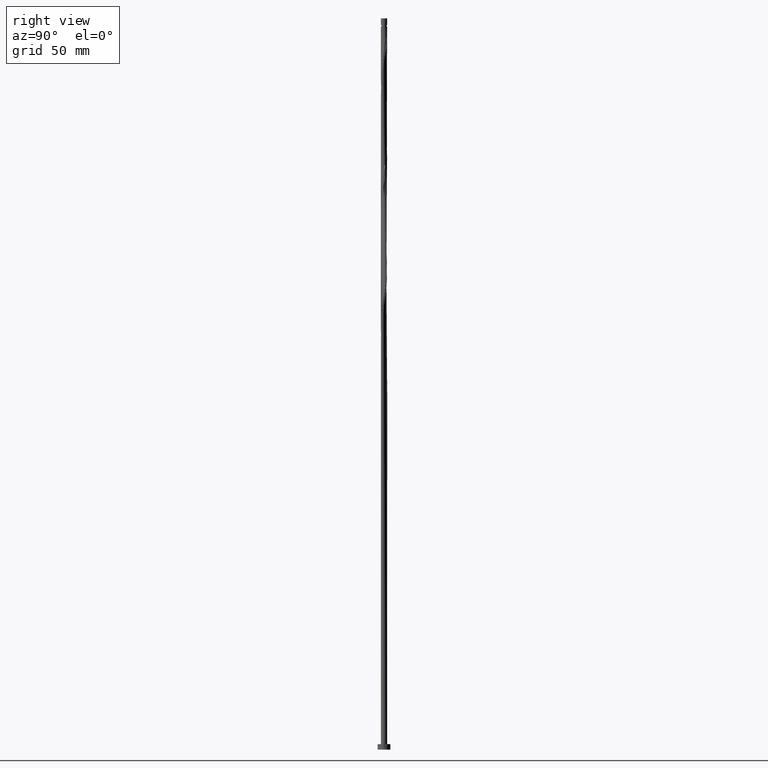
[diagram: clean part render]
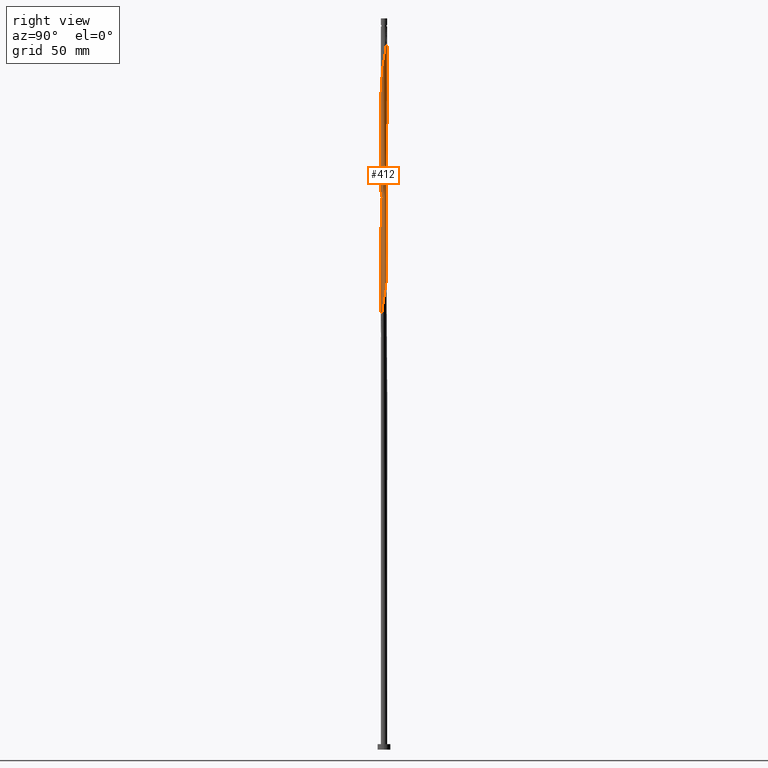
[diagram: same view with one face highlighted and labeled with its STEP entity id]
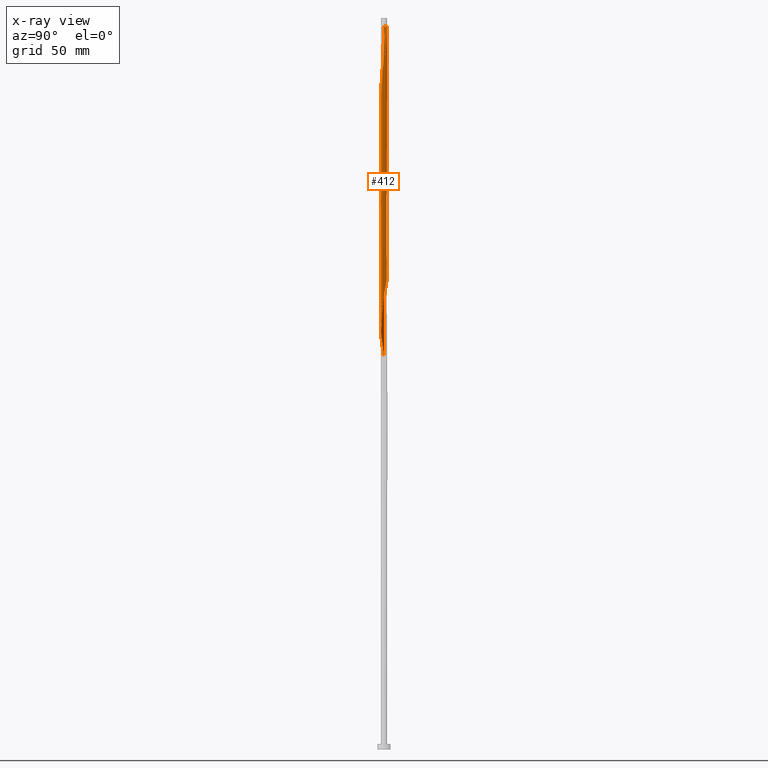
[diagram: x-ray of the same camera — body ghosted, the highlighted face saturated]
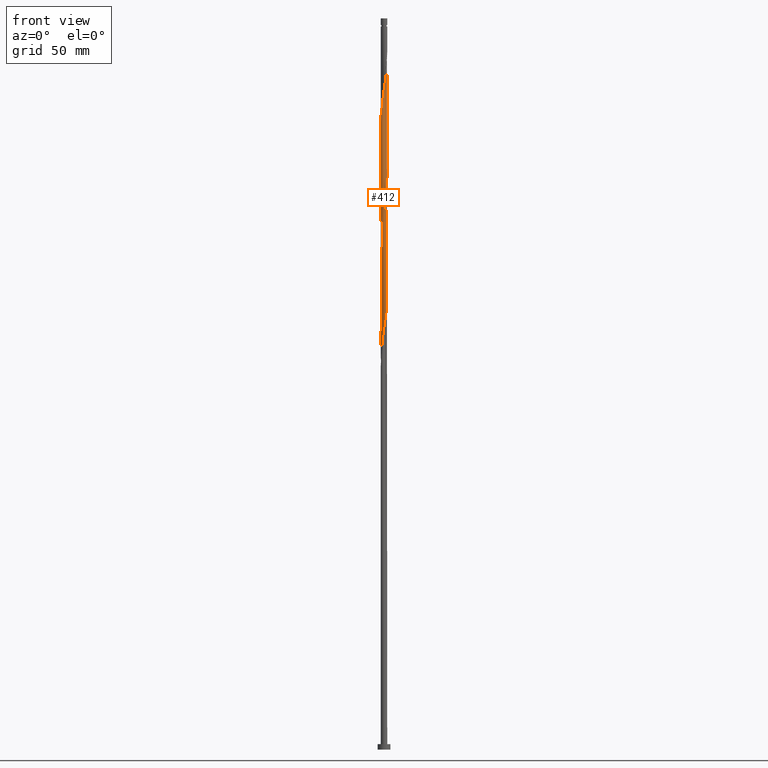
[diagram: same view with one face highlighted and labeled with its STEP entity id]
A machine part, right view. The second image highlights one B-rep face of the part: STEP entity #412.
The next image is the same camera in x-ray: the body ghosted, the highlighted face saturated — about 0% of this face is hidden behind the body in this view.
A second angle (front view) of the same face is appended — the face is thin or edge-on in the first view.
In plain terms, the highlighted cylindrical surface (bore or boss wall) has radius 1.75 mm, axis along (-0, -0, -1).
Its self-contained STEP definition (entity closure, byte-faithful):
#8 = CARTESIAN_POINT ( 'NONE',  ( -0.5284993664679560332, -1.678397912213382526, 227.8085007453947526 ) ) ;
#11 = CARTESIAN_POINT ( 'NONE',  ( -1.600927825098412693, -0.7303158432520397980, 285.5862785231725525 ) ) ;
#21 = CARTESIAN_POINT ( 'NONE',  ( -1.189285546401577243, -1.296892833351924068, 352.2529451898392949 ) ) ;
#22 = EDGE_CURVE ( 'NONE', #160, #1508, #1304, .T. ) ;
#29 = CARTESIAN_POINT ( 'NONE',  ( 0.6972041507806031602, 1.605118803121531990, 326.6973896342836383 ) ) ;
#43 = CARTESIAN_POINT ( 'NONE',  ( -1.613960246221781913, 0.7010445461559460245, 343.3640563009503239 ) ) ;
#46 = CARTESIAN_POINT ( 'NONE',  ( -1.613960246221781913, 0.7010445461559460245, 276.6973896342836952 ) ) ;
#48 = CARTESIAN_POINT ( 'NONE',  ( 1.189285546401575466, -1.296892833351922736, 305.5862785231726093 ) ) ;
#55 = CARTESIAN_POINT ( 'NONE',  ( -0.3482456029873505221, 1.715000000000446168, 395.5862785231726093 ) ) ;
#58 = CARTESIAN_POINT ( 'NONE',  ( -1.432935985591727190, 1.021286244534576282, 274.4751674120614098 ) ) ;
#63 = CARTESIAN_POINT ( 'NONE',  ( 1.600927825098412915, 0.7303158432520396870, 318.9196118565058669 ) ) ;
#66 = CARTESIAN_POINT ( 'NONE',  ( -1.738675734985620336, -0.1987628953608082116, 282.2529451898392381 ) ) ;
#69 = EDGE_LOOP ( 'NONE', ( #1548, #1761, #403, #95, #252, #1417, #1460, #272 ) ) ;
#93 = CARTESIAN_POINT ( 'NONE',  ( -1.717784912869531500, -0.3815050788614596233, 216.6973896342836667 ) ) ;
#95 = ORIENTED_EDGE ( 'NONE', *, *, #1837, .T. ) ;
#106 = CARTESIAN_POINT ( 'NONE',  ( 1.759566557101710504, 0.01602071186015532889, 247.8085007453947526 ) ) ;
#110 = EDGE_CURVE ( 'NONE', #804, #160, #423, .T. ) ;
#134 = CARTESIAN_POINT ( 'NONE',  ( 1.750000000000000000, -7.773176018745446450E-16, 314.3783884333606693 ) ) ;
#145 = CARTESIAN_POINT ( 'NONE',  ( 1.717784912869533498, -0.3815050788614620103, 374.4751674120613529 ) ) ;
#157 = CARTESIAN_POINT ( 'NONE',  ( 1.738675734985623222, -0.1987628953608090721, 375.5862785231726093 ) ) ;
#158 = CARTESIAN_POINT ( 'NONE',  ( -1.165474128162896639, -1.318332730634496519, 223.3640563009503239 ) ) ;
#160 = VERTEX_POINT ( 'NONE', #134 ) ;
#164 = CARTESIAN_POINT ( 'NONE',  ( 1.750000000000000000, 2.143131898507868297E-16, 395.5862785231726093 ) ) ;
#180 =( BOUNDED_CURVE ( )  B_SPLINE_CURVE ( 2, ( #1467, #1496, #1642, #608, #759, #613, #1184, #1165, #902, #21, #295, #1314, #1776, #1765, #479, #1635, #1887, #1060, #1025, #1033, #892, #1757, #331, #460, #1619, #305, #579, #1744, #441, #145, #157, #734, #1041, #1628, #1323, #1485, #379, #620, #1218, #1670, #200, #1368, #339, #1067, #1380, #1813, #967, #514, #55 ),
 .UNSPECIFIED., .F., .T. ) 
 B_SPLINE_CURVE_WITH_KNOTS ( ( 3, 2, 2, 2, 2, 2, 2, 2, 2, 2, 2, 2, 2, 2, 2, 2, 2, 2, 2, 2, 2, 2, 2, 2, 3 ),
 ( 0.5545286012773110729, 0.5583333333333333481, 0.5666666666666666519, 0.5749999999999999556, 0.5833333333333332593, 0.5916666666666666741, 0.6000000000000000888, 0.6083333333333335036, 0.6166666666666668073, 0.6250000000000001110, 0.6333333333333334147, 0.6416666666666667185, 0.6500000000000001332, 0.6583333333333334370, 0.6666666666666668517, 0.6750000000000001554, 0.6833333333333334592, 0.6916666666666668739, 0.7000000000000001776, 0.7083333333333334814, 0.7166666666666668961, 0.7250000000000001998, 0.7333333333333336146, 0.7416666666666669183, 0.7500000000000002220 ),
 .UNSPECIFIED. ) 
 CURVE ( )  GEOMETRIC_REPRESENTATION_ITEM ( )  RATIONAL_B_SPLINE_CURVE ( ( 0.9066196499552863219, 0.9068171577856988241, 0.9090909090909981005, 0.9041108139712461522, 0.9090909090909981005, 0.9041108139712461522, 0.9090909090909981005, 0.9041108139712461522, 0.9090909090909981005, 0.9041108139712461522, 0.9090909090909981005, 0.9041108139712461522, 0.9090909090909981005, 0.9041108139712461522, 0.9090909090909981005, 0.9041108139712461522, 0.9090909090909981005, 0.9041108139712461522, 0.9090909090909981005, 0.9041108139712461522, 0.9090909090909981005, 0.9041108139712461522, 0.9090909090909981005, 0.9041108139712461522, 0.9090909090909981005, 0.9041108139712461522, 0.9090909090909981005, 0.9041108139712461522, 0.9090909090909981005, 0.9041108139712461522, 0.9090909090909981005, 0.9041108139712461522, 0.9090909090909981005, 0.9041108139712461522, 0.9090909090909981005, 0.9041108139712461522, 0.9090909090909981005, 0.9041108139712461522, 0.9090909090909981005, 0.9041108139712461522, 0.9090909090909981005, 0.9041108139712461522, 0.9090909090909981005, 0.9041108139712461522, 0.9090909090909981005, 0.9041108139712461522, 0.9090909090909981005, 0.9041108139712460412, 0.9090909090909982115 ) ) 
 REPRESENTATION_ITEM ( '' )  );
#191 = CARTESIAN_POINT ( 'NONE',  ( -0.1998577369553097005, 1.748252847004224009, 332.2529451898391812 ) ) ;
#200 = CARTESIAN_POINT ( 'NONE',  ( 1.041471584205020617, 1.406355907760725055, 386.6973896342836952 ) ) ;
#205 = CARTESIAN_POINT ( 'NONE',  ( 1.724446699451429366, -0.3501638371253404380, 312.2529451898391812 ) ) ;
#214 = CARTESIAN_POINT ( 'NONE',  ( -1.311110765996650995, 1.159089538943249398, 273.3640563009503808 ) ) ;
#216 = CARTESIAN_POINT ( 'NONE',  ( 1.311110765996650773, -1.159089538943249842, 306.6973896342836383 ) ) ;
#232 = EDGE_CURVE ( 'NONE', #1471, #1479, #739, .T. ) ;
#239 = CARTESIAN_POINT ( 'NONE',  ( -1.600927825098412693, -0.7303158432520397980, 218.9196118565058953 ) ) ;
#248 = CARTESIAN_POINT ( 'NONE',  ( 0.1998577369553093952, -1.748252847004224009, 298.9196118565058100 ) ) ;
#252 = ORIENTED_EDGE ( 'NONE', *, *, #22, .F. ) ;
#258 = CARTESIAN_POINT ( 'NONE',  ( 1.600927825098412915, 0.7303158432520396870, 252.2529451898392097 ) ) ;
#269 = CARTESIAN_POINT ( 'NONE',  ( -0.1679918395066862802, -1.751602087786616302, 296.6973896342835815 ) ) ;
#272 = ORIENTED_EDGE ( 'NONE', *, *, #999, .F. ) ;
#277 = CARTESIAN_POINT ( 'NONE',  ( -0.01593294872431199119, 1.749927467395420155, 264.4751674120614666 ) ) ;
#285 = CARTESIAN_POINT ( 'NONE',  ( -0.8659089350932489548, -1.531839694029681231, 225.5862785231724956 ) ) ;
#295 = CARTESIAN_POINT ( 'NONE',  ( -1.041471584205020395, -1.406355907760725055, 353.3640563009503239 ) ) ;
#305 = CARTESIAN_POINT ( 'NONE',  ( 1.414102509266473851, -1.047208300848279983, 370.0307229676169527 ) ) ;
#308 = CARTESIAN_POINT ( 'NONE',  ( 1.750000000000000000, 2.143131898507868297E-16, 400.0000000000000000 ) ) ;
#331 = CARTESIAN_POINT ( 'NONE',  ( 1.015691531628073019, -1.425086212332092650, 366.6973896342836952 ) ) ;
#339 = CARTESIAN_POINT ( 'NONE',  ( 0.7263150966484994697, 1.592157774964682915, 388.9196118565060374 ) ) ;
#346 = CARTESIAN_POINT ( 'NONE',  ( 1.659356368983972319, 0.5559104610567486837, 317.8085007453947242 ) ) ;
#357 = CARTESIAN_POINT ( 'NONE',  ( 0.8659089350932490659, 1.531839694029680787, 325.5862785231725525 ) ) ;
#365 = CARTESIAN_POINT ( 'NONE',  ( 1.749999999999999556, 0.09970404053125733745, 314.9839797427452481 ) ) ;
#373 = CARTESIAN_POINT ( 'NONE',  ( 1.750000000000000222, -0.08372699875181165152, 313.8698399077966315 ) ) ;
#379 = CARTESIAN_POINT ( 'NONE',  ( 1.523448115906757439, 0.8611653953452615973, 382.2529451898392949 ) ) ;
#392 = CARTESIAN_POINT ( 'NONE',  ( 1.041471584205018175, -1.406355907760724389, 237.8085007453947242 ) ) ;
#394 = CARTESIAN_POINT ( 'NONE',  ( -1.750000000000000000, 2.242262313099648157E-17, 214.3783884333606977 ) ) ;
#403 = ORIENTED_EDGE ( 'NONE', *, *, #929, .F. ) ;
#411 = CARTESIAN_POINT ( 'NONE',  ( 1.507515167182443161, 0.8887620720501582250, 253.3640563009503524 ) ) ;
#412 = ADVANCED_FACE ( 'NONE', ( #631 ), #1220, .T. ) ;
#415 = CARTESIAN_POINT ( 'NONE',  ( -0.3482456029873505221, 1.715000000000446168, 395.5862785231726093 ) ) ;
#420 = CARTESIAN_POINT ( 'NONE',  ( -0.5589725712885339481, 1.668496567759836902, 267.8085007453947242 ) ) ;
#423 = LINE ( 'NONE', #308, #774 ) ;
#430 = CARTESIAN_POINT ( 'NONE',  ( -0.3794151541219216162, 1.708374707382030344, 266.6973896342836383 ) ) ;
#441 = CARTESIAN_POINT ( 'NONE',  ( 1.659356368983974539, -0.5559104610567517923, 373.3640563009503239 ) ) ;
#460 = CARTESIAN_POINT ( 'NONE',  ( 1.165474128162896861, -1.318332730634499184, 367.8085007453947242 ) ) ;
#464 = CARTESIAN_POINT ( 'NONE',  ( -1.717784912869531500, -0.3815050788614596233, 283.3640563009503239 ) ) ;
#465 = CARTESIAN_POINT ( 'NONE',  ( -1.750000000000000000, 2.242262313099648157E-17, 214.3783884333606977 ) ) ;
#479 = CARTESIAN_POINT ( 'NONE',  ( -0.3794151541219228929, -1.708374707382032787, 357.8085007453947242 ) ) ;
#498 = CARTESIAN_POINT ( 'NONE',  ( 1.507515167182443161, 0.8887620720501582250, 320.0307229676170095 ) ) ;
#500 = DIRECTION ( 'NONE',  ( -0.000000000000000000, -0.000000000000000000, -1.000000000000000000 ) ) ;
#504 = CARTESIAN_POINT ( 'NONE',  ( -1.507515167182442939, -0.8887620720501582250, 220.0307229676169527 ) ) ;
#514 = CARTESIAN_POINT ( 'NONE',  ( -0.1679918395066890002, 1.751602087786618966, 394.4751674120614098 ) ) ;
#537 = CARTESIAN_POINT ( 'NONE',  ( 1.669203472836606084, -0.5256041916406442027, 244.4751674120614098 ) ) ;
#547 = CARTESIAN_POINT ( 'NONE',  ( -0.3482456029873208236, -1.714999999999998970, 295.5862785231726093 ) ) ;
#564 = CARTESIAN_POINT ( 'NONE',  ( 1.742006628276570046, -0.1670715626325925962, 246.6973896342836952 ) ) ;
#570 = DIRECTION ( 'NONE',  ( -1.000000000000000000, 0.000000000000000000, 0.000000000000000000 ) ) ;
#571 = CARTESIAN_POINT ( 'NONE',  ( 1.659356368983972319, 0.5559104610567486837, 251.1418340787281522 ) ) ;
#579 = CARTESIAN_POINT ( 'NONE',  ( 1.507515167182444271, -0.8887620720501611116, 371.1418340787282091 ) ) ;
#585 = VERTEX_POINT ( 'NONE', #1147 ) ;
#598 = CARTESIAN_POINT ( 'NONE',  ( -1.414102509266472518, -1.047208300848277762, 221.1418340787280385 ) ) ;
#600 = CARTESIAN_POINT ( 'NONE',  ( -1.659356368983971652, -0.5559104610567496829, 284.4751674120614666 ) ) ;
#608 = CARTESIAN_POINT ( 'NONE',  ( -1.724446699451431808, -0.3501638371253402715, 345.5862785231725525 ) ) ;
#613 = CARTESIAN_POINT ( 'NONE',  ( -1.613960246221784356, -0.7010445461559460245, 347.8085007453946673 ) ) ;
#620 = CARTESIAN_POINT ( 'NONE',  ( 1.432935985591729633, 1.021286244534576282, 383.3640563009503239 ) ) ;
#623 = CARTESIAN_POINT ( 'NONE',  ( -1.724446699451429366, 0.3501638371253402160, 278.9196118565058100 ) ) ;
#628 = CARTESIAN_POINT ( 'NONE',  ( -1.311110765996650995, 1.159089538943249398, 340.0307229676170095 ) ) ;
#631 = FACE_OUTER_BOUND ( 'NONE', #69, .T. ) ;
#639 = CARTESIAN_POINT ( 'NONE',  ( -1.742006628276570046, 0.1670715626325919301, 346.6973896342836383 ) ) ;
#642 = CARTESIAN_POINT ( 'NONE',  ( -1.189285546401575466, 1.296892833351922736, 272.2529451898391244 ) ) ;
#658 = CARTESIAN_POINT ( 'NONE',  ( -1.523448115906754330, 0.8611653953452607091, 342.2529451898391812 ) ) ;
#663 = CARTESIAN_POINT ( 'NONE',  ( 1.669203472836606084, -0.5256041916406442027, 311.1418340787280954 ) ) ;
#666 = DIRECTION ( 'NONE',  ( -0.000000000000000000, -0.000000000000000000, -1.000000000000000000 ) ) ;
#674 = CARTESIAN_POINT ( 'NONE',  ( 1.015691531628073463, 1.425086212332088431, 257.8085007453947810 ) ) ;
#676 = CARTESIAN_POINT ( 'NONE',  ( 0.5589725712885333930, -1.668496567759837346, 301.1418340787280385 ) ) ;
#695 = CARTESIAN_POINT ( 'NONE',  ( 1.613960246221781691, -0.7010445461559464686, 243.3640563009502955 ) ) ;
#698 = CARTESIAN_POINT ( 'NONE',  ( -1.289788318714684578, -1.182770515741387252, 288.9196118565058669 ) ) ;
#705 = CARTESIAN_POINT ( 'NONE',  ( -0.1998577369553097005, 1.748252847004224009, 265.5862785231724956 ) ) ;
#718 = AXIS2_PLACEMENT_3D ( 'NONE', #1798, #500, #570 ) ;
#734 = CARTESIAN_POINT ( 'NONE',  ( 1.759566557101712281, -0.01602071186015776444, 376.6973896342836383 ) ) ;
#739 = LINE ( 'NONE', #1319, #1272 ) ;
#759 = CARTESIAN_POINT ( 'NONE',  ( -1.669203472836608748, -0.5256041916406433145, 346.6973896342836952 ) ) ;
#760 = CARTESIAN_POINT ( 'NONE',  ( 0.01593294872431156445, -1.749927467395419933, 231.1418340787280670 ) ) ;
#768 = CARTESIAN_POINT ( 'NONE',  ( -1.724446699451429366, 0.3501638371253402160, 345.5862785231725525 ) ) ;
#774 = VECTOR ( 'NONE', #1009, 1000.000000000000000 ) ;
#777 = CARTESIAN_POINT ( 'NONE',  ( 1.414102509266473406, 1.047208300848276652, 321.1418340787280385 ) ) ;
#793 = CARTESIAN_POINT ( 'NONE',  ( 1.041471584205018175, -1.406355907760724389, 304.4751674120612961 ) ) ;
#804 = VERTEX_POINT ( 'NONE', #164 ) ;
#825 = CARTESIAN_POINT ( 'NONE',  ( 1.613960246221781691, -0.7010445461559464686, 310.0307229676168959 ) ) ;
#828 = CARTESIAN_POINT ( 'NONE',  ( -1.659356368983971652, -0.5559104610567496829, 217.8085007453947242 ) ) ;
#840 = DIRECTION ( 'NONE',  ( -1.000000000000000000, 0.000000000000000000, 0.000000000000000000 ) ) ;
#854 = CARTESIAN_POINT ( 'NONE',  ( 0.3482456029873209902, 1.714999999999998970, 262.2529451898392381 ) ) ;
#857 = CARTESIAN_POINT ( 'NONE',  ( -1.015691531628072797, -1.425086212332089097, 291.1418340787281522 ) ) ;
#892 = CARTESIAN_POINT ( 'NONE',  ( 0.6972041507806024940, -1.605118803121534876, 364.4751674120615803 ) ) ;
#893 = CARTESIAN_POINT ( 'NONE',  ( -0.6972041507806027161, -1.605118803121531990, 226.6973896342836099 ) ) ;
#902 = CARTESIAN_POINT ( 'NONE',  ( -1.311110765996653660, -1.159089538943250286, 351.1418340787280954 ) ) ;
#929 = EDGE_CURVE ( 'NONE', #585, #1615, #180, .T. ) ;
#930 = CARTESIAN_POINT ( 'NONE',  ( 0.3482456029873209902, 1.714999999999998970, 328.9196118565058669 ) ) ;
#931 = AXIS2_PLACEMENT_3D ( 'NONE', #1102, #666, #840 ) ;
#946 = CARTESIAN_POINT ( 'NONE',  ( 1.289788318714684801, 1.182770515741387252, 322.2529451898391244 ) ) ;
#954 = CARTESIAN_POINT ( 'NONE',  ( 1.432935985591726524, -1.021286244534577170, 307.8085007453947242 ) ) ;
#958 = CARTESIAN_POINT ( 'NONE',  ( -0.7263150966484975823, 1.592157774964680916, 335.5862785231724388 ) ) ;
#967 = CARTESIAN_POINT ( 'NONE',  ( 0.01593294872431320203, 1.749927467395422598, 393.3640563009503239 ) ) ;
#970 = CARTESIAN_POINT ( 'NONE',  ( -1.759566557101710504, -0.01602071186015634544, 281.1418340787280954 ) ) ;
#979 = CARTESIAN_POINT ( 'NONE',  ( 0.8936576220084608835, -1.515818982169524931, 236.6973896342836667 ) ) ;
#987 = CARTESIAN_POINT ( 'NONE',  ( 0.1679918395066855308, 1.751602087786616080, 263.3640563009503239 ) ) ;
#995 = CARTESIAN_POINT ( 'NONE',  ( 1.189285546401575466, -1.296892833351922736, 238.9196118565058669 ) ) ;
#999 = EDGE_CURVE ( 'NONE', #1479, #160, #1851, .T. ) ;
#1002 = CARTESIAN_POINT ( 'NONE',  ( -1.749999999999963807, 0.000000000000000000, 395.5862785231724956 ) ) ;
#1009 = DIRECTION ( 'NONE',  ( -0.000000000000000000, -0.000000000000000000, -1.000000000000000000 ) ) ;
#1016 = CARTESIAN_POINT ( 'NONE',  ( 1.165474128162896861, 1.318332730634496519, 256.6973896342836383 ) ) ;
#1025 = CARTESIAN_POINT ( 'NONE',  ( 0.3482456029873206571, -1.715000000000001856, 362.2529451898391244 ) ) ;
#1033 = CARTESIAN_POINT ( 'NONE',  ( 0.5284993664679553671, -1.678397912213385634, 363.3640563009502671 ) ) ;
#1041 = CARTESIAN_POINT ( 'NONE',  ( 1.742006628276572933, 0.1670715626325904035, 377.8085007453947242 ) ) ;
#1060 = CARTESIAN_POINT ( 'NONE',  ( 0.1679918395066850867, -1.751602087786618300, 361.1418340787280385 ) ) ;
#1067 = CARTESIAN_POINT ( 'NONE',  ( 0.5589725712885353914, 1.668496567759838900, 390.0307229676169527 ) ) ;
#1075 = CARTESIAN_POINT ( 'NONE',  ( 1.750000000000000000, -7.773176018745446450E-16, 314.3783884333606693 ) ) ;
#1084 = CARTESIAN_POINT ( 'NONE',  ( -0.8936576220084611055, 1.515818982169524709, 336.6973896342836952 ) ) ;
#1088 = CARTESIAN_POINT ( 'NONE',  ( 1.523448115906754330, -0.8611653953452609311, 308.9196118565059237 ) ) ;
#1093 = CARTESIAN_POINT ( 'NONE',  ( -1.432935985591727190, 1.021286244534576282, 341.1418340787279817 ) ) ;
#1100 = CARTESIAN_POINT ( 'NONE',  ( 1.750000000000000000, -7.773176018745446450E-16, 314.3783884333606693 ) ) ;
#1102 = CARTESIAN_POINT ( 'NONE',  ( 0.000000000000000000, 0.000000000000000000, 395.5862785231724956 ) ) ;
#1119 = CARTESIAN_POINT ( 'NONE',  ( 1.432935985591726524, -1.021286244534577170, 241.1418340787280670 ) ) ;
#1131 = CARTESIAN_POINT ( 'NONE',  ( 0.5589725712885333930, -1.668496567759837346, 234.4751674120614098 ) ) ;
#1133 = CARTESIAN_POINT ( 'NONE',  ( -0.5284993664679560332, -1.678397912213382526, 294.4751674120614666 ) ) ;
#1147 = CARTESIAN_POINT ( 'NONE',  ( -1.750000000000002442, -3.811845932269377646E-16, 343.4608352796509507 ) ) ;
#1157 = CARTESIAN_POINT ( 'NONE',  ( 0.3794151541219210055, -1.708374707382031010, 300.0307229676168959 ) ) ;
#1165 = CARTESIAN_POINT ( 'NONE',  ( -1.432935985591729633, -1.021286244534576948, 350.0307229676168959 ) ) ;
#1184 = CARTESIAN_POINT ( 'NONE',  ( -1.523448115906757439, -0.8611653953452617083, 348.9196118565059237 ) ) ;
#1193 = CARTESIAN_POINT ( 'NONE',  ( -1.414102509266472518, -1.047208300848277762, 287.8085007453947242 ) ) ;
#1207 = CARTESIAN_POINT ( 'NONE',  ( 1.738675734985620336, 0.1987628953608079341, 315.5862785231725525 ) ) ;
#1218 = CARTESIAN_POINT ( 'NONE',  ( 1.311110765996654326, 1.159089538943249398, 384.4751674120615235 ) ) ;
#1220 = CYLINDRICAL_SURFACE ( 'NONE', #718, 1.750000000000000000 ) ;
#1227 = CARTESIAN_POINT ( 'NONE',  ( -0.5589725712885339481, 1.668496567759836902, 334.4751674120614666 ) ) ;
#1232 = CARTESIAN_POINT ( 'NONE',  ( -1.041471584205018397, 1.406355907760723500, 271.1418340787280385 ) ) ;
#1246 = CARTESIAN_POINT ( 'NONE',  ( 0.7263150966484974713, -1.592157774964680916, 302.2529451898392381 ) ) ;
#1252 = CARTESIAN_POINT ( 'NONE',  ( -1.041471584205018397, 1.406355907760723500, 337.8085007453947810 ) ) ;
#1267 = CARTESIAN_POINT ( 'NONE',  ( 1.289788318714684801, 1.182770515741387252, 255.5862785231724956 ) ) ;
#1272 = VECTOR ( 'NONE', #1330, 1000.000000000000000 ) ;
#1278 = CARTESIAN_POINT ( 'NONE',  ( -0.7263150966484975823, 1.592157774964680916, 268.9196118565058669 ) ) ;
#1286 = CARTESIAN_POINT ( 'NONE',  ( 0.5284993664679570324, 1.678397912213382526, 261.1418340787280385 ) ) ;
#1290 = CARTESIAN_POINT ( 'NONE',  ( -1.750000000000000000, 1.151027987391152437E-15, 347.7117217666940974 ) ) ;
#1299 = CARTESIAN_POINT ( 'NONE',  ( -0.8659089350932489548, -1.531839694029681231, 292.2529451898391812 ) ) ;
#1304 =( BOUNDED_CURVE ( )  B_SPLINE_CURVE ( 2, ( #1100, #373, #1528, #205, #663, #825, #1088, #954, #216, #48, #793, #1386, #1246, #676, #1157, #248, #1603, #269, #547, #1133, #1431, #1299, #857, #1441, #698, #1193, #1644, #11, #600, #464, #66, #970, #1405, #623, #1516, #46, #1666, #58, #214, #642, #1232, #1421, #1278, #420, #430, #705, #277, #987, #854, #1286, #1720, #1306, #674, #1016, #1267, #1844, #411, #258, #571, #1735, #1601, #106, #564, #1833, #537, #695, #1438, #1119, #1703, #995, #392, #979, #1584, #1131, #1854, #1575, #760, #1766, #1355, #8, #893, #285, #1751, #158, #1335, #598, #504, #239, #828, #93, #1659, #1373, #465 ),
 .UNSPECIFIED., .F., .T. ) 
 B_SPLINE_CURVE_WITH_KNOTS ( ( 3, 2, 2, 2, 2, 2, 2, 2, 2, 2, 2, 2, 2, 2, 2, 2, 2, 2, 2, 2, 2, 2, 2, 2, 2, 2, 2, 2, 2, 2, 2, 2, 2, 2, 2, 2, 2, 2, 2, 2, 2, 2, 2, 2, 2, 2, 3 ),
 ( 0.5545286012773112949, 0.5583333333333333481, 0.5666666666666666519, 0.5749999999999999556, 0.5833333333333333703, 0.5916666666666666741, 0.5999999999999999778, 0.6083333333333332815, 0.6166666666666666963, 0.6250000000000000000, 0.6333333333333333037, 0.6416666666666667185, 0.6500000000000000222, 0.6583333333333333259, 0.6666666666666666297, 0.6750000000000000444, 0.6833333333333333481, 0.6916666666666666519, 0.6999999999999999556, 0.7083333333333333703, 0.7166666666666666741, 0.7249999999999999778, 0.7333333333333332815, 0.7416666666666666963, 0.7500000000000000000, 0.7583333333333333037, 0.7666666666666667185, 0.7750000000000000222, 0.7833333333333333259, 0.7916666666666666297, 0.8000000000000000444, 0.8083333333333333481, 0.8166666666666666519, 0.8249999999999999556, 0.8333333333333333703, 0.8416666666666666741, 0.8499999999999999778, 0.8583333333333332815, 0.8666666666666666963, 0.8750000000000000000, 0.8833333333333333037, 0.8916666666666667185, 0.9000000000000000222, 0.9083333333333333259, 0.9166666666666666297, 0.9250000000000000444, 0.9295286012773115170 ),
 .UNSPECIFIED. ) 
 CURVE ( )  GEOMETRIC_REPRESENTATION_ITEM ( )  RATIONAL_B_SPLINE_CURVE ( ( 0.9066196499552807708, 0.9068171577856933840, 0.9090909090909925494, 0.9041108139712406011, 0.9090909090909925494, 0.9041108139712406011, 0.9090909090909925494, 0.9041108139712406011, 0.9090909090909925494, 0.9041108139712406011, 0.9090909090909925494, 0.9041108139712406011, 0.9090909090909925494, 0.9041108139712406011, 0.9090909090909925494, 0.9041108139712406011, 0.9090909090909925494, 0.9041108139712406011, 0.9090909090909925494, 0.9041108139712406011, 0.9090909090909925494, 0.9041108139712406011, 0.9090909090909925494, 0.9041108139712406011, 0.9090909090909925494, 0.9041108139712406011, 0.9090909090909925494, 0.9041108139712406011, 0.9090909090909925494, 0.9041108139712406011, 0.9090909090909925494, 0.9041108139712406011, 0.9090909090909925494, 0.9041108139712406011, 0.9090909090909925494, 0.9041108139712406011, 0.9090909090909925494, 0.9041108139712406011, 0.9090909090909925494, 0.9041108139712406011, 0.9090909090909925494, 0.9041108139712406011, 0.9090909090909925494, 0.9041108139712406011, 0.9090909090909925494, 0.9041108139712406011, 0.9090909090909925494, 0.9041108139712406011, 0.9090909090909925494, 0.9041108139712406011, 0.9090909090909925494, 0.9041108139712406011, 0.9090909090909925494, 0.9041108139712406011, 0.9090909090909925494, 0.9041108139712406011, 0.9090909090909925494, 0.9041108139712406011, 0.9090909090909925494, 0.9041108139712406011, 0.9090909090909925494, 0.9041108139712406011, 0.9090909090909925494, 0.9041108139712406011, 0.9090909090909925494, 0.9041108139712406011, 0.9090909090909925494, 0.9041108139712406011, 0.9090909090909925494, 0.9041108139712406011, 0.9090909090909925494, 0.9041108139712406011, 0.9090909090909925494, 0.9041108139712406011, 0.9090909090909925494, 0.9041108139712406011, 0.9090909090909925494, 0.9041108139712406011, 0.9090909090909925494, 0.9041108139712406011, 0.9090909090909925494, 0.9041108139712406011, 0.9090909090909925494, 0.9041108139712406011, 0.9090909090909925494, 0.9041108139712406011, 0.9090909090909925494, 0.9041108139712406011, 0.9090909090909925494, 0.9041108139712406011, 0.9090909090909925494, 0.9063845652765396554, 0.9066196499552807708 ) ) 
 REPRESENTATION_ITEM ( '' )  );
#1306 = CARTESIAN_POINT ( 'NONE',  ( 0.8659089350932490659, 1.531839694029680787, 258.9196118565058669 ) ) ;
#1309 = DIRECTION ( 'NONE',  ( -0.000000000000000000, -0.000000000000000000, -1.000000000000000000 ) ) ;
#1314 = CARTESIAN_POINT ( 'NONE',  ( -0.8936576220084627709, -1.515818982169526263, 354.4751674120614666 ) ) ;
#1319 = CARTESIAN_POINT ( 'NONE',  ( -1.750000000000000000, 0.000000000000000000, 400.0000000000000000 ) ) ;
#1323 = CARTESIAN_POINT ( 'NONE',  ( 1.669203472836608748, 0.5256041916406426484, 380.0307229676170664 ) ) ;
#1330 = DIRECTION ( 'NONE',  ( -0.000000000000000000, -0.000000000000000000, -1.000000000000000000 ) ) ;
#1335 = CARTESIAN_POINT ( 'NONE',  ( -1.289788318714684578, -1.182770515741387252, 222.2529451898391812 ) ) ;
#1355 = CARTESIAN_POINT ( 'NONE',  ( -0.3482456029873208236, -1.714999999999998970, 228.9196118565058669 ) ) ;
#1360 = CARTESIAN_POINT ( 'NONE',  ( -1.189285546401575466, 1.296892833351922736, 338.9196118565058100 ) ) ;
#1368 = CARTESIAN_POINT ( 'NONE',  ( 0.8936576220084639921, 1.515818982169525153, 387.8085007453945536 ) ) ;
#1373 = CARTESIAN_POINT ( 'NONE',  ( -1.750000000000000000, -0.09970404053125310473, 214.9839797427452197 ) ) ;
#1380 = CARTESIAN_POINT ( 'NONE',  ( 0.3794151541219238366, 1.708374707382032565, 391.1418340787281522 ) ) ;
#1386 = CARTESIAN_POINT ( 'NONE',  ( 0.8936576220084608835, -1.515818982169524931, 303.3640563009503808 ) ) ;
#1400 = CARTESIAN_POINT ( 'NONE',  ( -1.750000000000000000, 1.151027987391152437E-15, 347.7117217666940974 ) ) ;
#1405 = CARTESIAN_POINT ( 'NONE',  ( -1.742006628276570046, 0.1670715626325919301, 280.0307229676170095 ) ) ;
#1417 = ORIENTED_EDGE ( 'NONE', *, *, #110, .F. ) ;
#1421 = CARTESIAN_POINT ( 'NONE',  ( -0.8936576220084611055, 1.515818982169524709, 270.0307229676170664 ) ) ;
#1431 = CARTESIAN_POINT ( 'NONE',  ( -0.6972041507806027161, -1.605118803121531990, 293.3640563009503239 ) ) ;
#1438 = CARTESIAN_POINT ( 'NONE',  ( 1.523448115906754330, -0.8611653953452609311, 242.2529451898392381 ) ) ;
#1441 = CARTESIAN_POINT ( 'NONE',  ( -1.165474128162896639, -1.318332730634496519, 290.0307229676168959 ) ) ;
#1460 = ORIENTED_EDGE ( 'NONE', *, *, #110, .T. ) ;
#1463 = LINE ( 'NONE', #1631, #1820 ) ;
#1467 = CARTESIAN_POINT ( 'NONE',  ( -1.750000000000002442, -3.811845932269377646E-16, 343.4608352796510076 ) ) ;
#1471 = VERTEX_POINT ( 'NONE', #1002 ) ;
#1479 = VERTEX_POINT ( 'NONE', #1290 ) ;
#1480 = EDGE_CURVE ( 'NONE', #1471, #1615, #1772, .T. ) ;
#1485 = CARTESIAN_POINT ( 'NONE',  ( 1.613960246221785244, 0.7010445461559453584, 381.1418340787280954 ) ) ;
#1496 = CARTESIAN_POINT ( 'NONE',  ( -1.750000000000002887, -0.08372699875180523998, 343.9693838052149886 ) ) ;
#1508 = VERTEX_POINT ( 'NONE', #394 ) ;
#1512 = CARTESIAN_POINT ( 'NONE',  ( 1.165474128162896861, 1.318332730634496519, 323.3640563009503239 ) ) ;
#1516 = CARTESIAN_POINT ( 'NONE',  ( -1.669203472836606084, 0.5256041916406432035, 277.8085007453948378 ) ) ;
#1522 = CARTESIAN_POINT ( 'NONE',  ( -0.01593294872431199119, 1.749927467395420155, 331.1418340787280954 ) ) ;
#1528 = CARTESIAN_POINT ( 'NONE',  ( 1.742006628276570046, -0.1670715626325925962, 313.3640563009503239 ) ) ;
#1548 = ORIENTED_EDGE ( 'NONE', *, *, #232, .F. ) ;
#1575 = CARTESIAN_POINT ( 'NONE',  ( 0.1998577369553093952, -1.748252847004224009, 232.2529451898391528 ) ) ;
#1584 = CARTESIAN_POINT ( 'NONE',  ( 0.7263150966484974713, -1.592157774964680916, 235.5862785231725240 ) ) ;
#1601 = CARTESIAN_POINT ( 'NONE',  ( 1.738675734985620336, 0.1987628953608079341, 248.9196118565058669 ) ) ;
#1603 = CARTESIAN_POINT ( 'NONE',  ( 0.01593294872431156445, -1.749927467395419933, 297.8085007453947242 ) ) ;
#1615 = VERTEX_POINT ( 'NONE', #415 ) ;
#1619 = CARTESIAN_POINT ( 'NONE',  ( 1.289788318714685911, -1.182770515741389250, 368.9196118565059237 ) ) ;
#1628 = CARTESIAN_POINT ( 'NONE',  ( 1.724446699451431808, 0.3501638371253400495, 378.9196118565059237 ) ) ;
#1631 = CARTESIAN_POINT ( 'NONE',  ( -1.750000000000000000, 0.000000000000000000, 400.0000000000000000 ) ) ;
#1635 = CARTESIAN_POINT ( 'NONE',  ( -0.1998577369553103666, -1.748252847004226229, 358.9196118565058100 ) ) ;
#1642 = CARTESIAN_POINT ( 'NONE',  ( -1.742006628276572933, -0.1670715626325913472, 344.4751674120614666 ) ) ;
#1644 = CARTESIAN_POINT ( 'NONE',  ( -1.507515167182442939, -0.8887620720501582250, 286.6973896342836383 ) ) ;
#1652 = CARTESIAN_POINT ( 'NONE',  ( -1.749999999999999778, 0.08372699875181503770, 347.2031732411300027 ) ) ;
#1659 = CARTESIAN_POINT ( 'NONE',  ( -1.738675734985620336, -0.1987628953608082116, 215.5862785231725240 ) ) ;
#1666 = CARTESIAN_POINT ( 'NONE',  ( -1.523448115906754330, 0.8611653953452607091, 275.5862785231724956 ) ) ;
#1670 = CARTESIAN_POINT ( 'NONE',  ( 1.189285546401577465, 1.296892833351924068, 385.5862785231724956 ) ) ;
#1678 = CARTESIAN_POINT ( 'NONE',  ( 1.015691531628073463, 1.425086212332088431, 324.4751674120614666 ) ) ;
#1686 = CARTESIAN_POINT ( 'NONE',  ( 0.5284993664679570324, 1.678397912213382526, 327.8085007453947810 ) ) ;
#1703 = CARTESIAN_POINT ( 'NONE',  ( 1.311110765996650773, -1.159089538943249842, 240.0307229676169811 ) ) ;
#1720 = CARTESIAN_POINT ( 'NONE',  ( 0.6972041507806031602, 1.605118803121531990, 260.0307229676169527 ) ) ;
#1735 = CARTESIAN_POINT ( 'NONE',  ( 1.717784912869531500, 0.3815050788614591237, 250.0307229676169811 ) ) ;
#1744 = CARTESIAN_POINT ( 'NONE',  ( 1.600927825098414692, -0.7303158432520414634, 372.2529451898392381 ) ) ;
#1751 = CARTESIAN_POINT ( 'NONE',  ( -1.015691531628072797, -1.425086212332089097, 224.4751674120614098 ) ) ;
#1757 = CARTESIAN_POINT ( 'NONE',  ( 0.8659089350932493989, -1.531839694029683896, 365.5862785231724956 ) ) ;
#1761 = ORIENTED_EDGE ( 'NONE', *, *, #1480, .T. ) ;
#1765 = CARTESIAN_POINT ( 'NONE',  ( -0.5589725712885353914, -1.668496567759838900, 356.6973896342836383 ) ) ;
#1766 = CARTESIAN_POINT ( 'NONE',  ( -0.1679918395066862802, -1.751602087786616302, 230.0307229676169811 ) ) ;
#1772 = CIRCLE ( 'NONE', #931, 1.749999999999963807 ) ;
#1776 = CARTESIAN_POINT ( 'NONE',  ( -0.7263150966484992477, -1.592157774964682915, 355.5862785231727230 ) ) ;
#1787 = CARTESIAN_POINT ( 'NONE',  ( 0.1679918395066855308, 1.751602087786616080, 330.0307229676168959 ) ) ;
#1795 = CARTESIAN_POINT ( 'NONE',  ( -1.669203472836606084, 0.5256041916406432035, 344.4751674120614098 ) ) ;
#1798 = CARTESIAN_POINT ( 'NONE',  ( 0.000000000000000000, 0.000000000000000000, 400.0000000000000000 ) ) ;
#1804 = CARTESIAN_POINT ( 'NONE',  ( -0.3794151541219216162, 1.708374707382030344, 333.3640563009502671 ) ) ;
#1813 = CARTESIAN_POINT ( 'NONE',  ( 0.1998577369553105887, 1.748252847004226451, 392.2529451898391812 ) ) ;
#1820 = VECTOR ( 'NONE', #1309, 1000.000000000000000 ) ;
#1821 = CARTESIAN_POINT ( 'NONE',  ( 1.717784912869531500, 0.3815050788614591237, 316.6973896342836952 ) ) ;
#1833 = CARTESIAN_POINT ( 'NONE',  ( 1.724446699451429366, -0.3501638371253404380, 245.5862785231724956 ) ) ;
#1837 = EDGE_CURVE ( 'NONE', #585, #1508, #1463, .T. ) ;
#1844 = CARTESIAN_POINT ( 'NONE',  ( 1.414102509266473406, 1.047208300848276652, 254.4751674120613814 ) ) ;
#1851 =( BOUNDED_CURVE ( )  B_SPLINE_CURVE ( 2, ( #1400, #1652, #639, #768, #1795, #43, #658, #1093, #628, #1360, #1252, #1084, #958, #1227, #1804, #191, #1522, #1787, #930, #1686, #29, #357, #1678, #1512, #946, #777, #498, #63, #346, #1821, #1207, #365, #1075 ),
 .UNSPECIFIED., .F., .T. ) 
 B_SPLINE_CURVE_WITH_KNOTS ( ( 3, 2, 2, 2, 2, 2, 2, 2, 2, 2, 2, 2, 2, 2, 2, 2, 3 ),
 ( 0.4295286012773114614, 0.4333333333333333481, 0.4416666666666666519, 0.4500000000000000111, 0.4583333333333333148, 0.4666666666666666741, 0.4749999999999999778, 0.4833333333333333370, 0.4916666666666666408, 0.5000000000000000000, 0.5083333333333333037, 0.5166666666666667185, 0.5250000000000000222, 0.5333333333333333259, 0.5416666666666666297, 0.5500000000000000444, 0.5545286012773112949 ),
 .UNSPECIFIED. ) 
 CURVE ( )  GEOMETRIC_REPRESENTATION_ITEM ( )  RATIONAL_B_SPLINE_CURVE ( ( 0.9066196499552807708, 0.9068171577856936061, 0.9090909090909925494, 0.9041108139712406011, 0.9090909090909925494, 0.9041108139712406011, 0.9090909090909925494, 0.9041108139712406011, 0.9090909090909925494, 0.9041108139712406011, 0.9090909090909925494, 0.9041108139712406011, 0.9090909090909925494, 0.9041108139712406011, 0.9090909090909925494, 0.9041108139712406011, 0.9090909090909925494, 0.9041108139712406011, 0.9090909090909925494, 0.9041108139712406011, 0.9090909090909925494, 0.9041108139712406011, 0.9090909090909925494, 0.9041108139712406011, 0.9090909090909925494, 0.9041108139712406011, 0.9090909090909925494, 0.9041108139712406011, 0.9090909090909925494, 0.9041108139712406011, 0.9090909090909925494, 0.9063845652765396554, 0.9066196499552807708 ) ) 
 REPRESENTATION_ITEM ( '' )  );
#1854 = CARTESIAN_POINT ( 'NONE',  ( 0.3794151541219210055, -1.708374707382031010, 233.3640563009502955 ) ) ;
#1887 = CARTESIAN_POINT ( 'NONE',  ( -0.01593294872431299039, -1.749927467395422598, 360.0307229676170664 ) ) ;